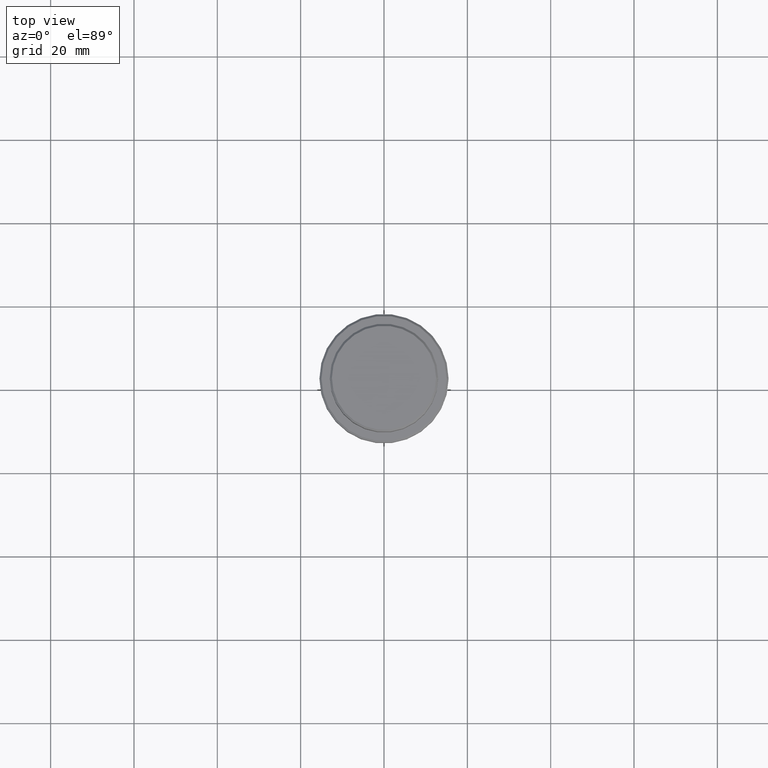
[diagram: clean part render]
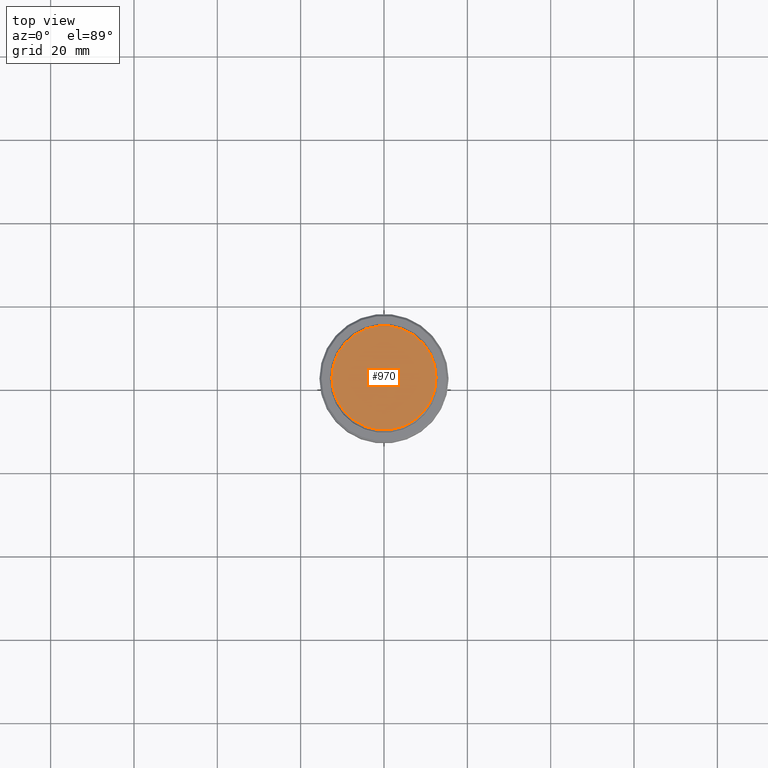
[diagram: same view with one face highlighted and labeled with its STEP entity id]
A machine part, top view. The second image highlights one B-rep face of the part: STEP entity #970.
In plain terms, the highlighted planar face has unit normal (0, -0, 1).
Its self-contained STEP definition (entity closure, byte-faithful):
#15 = EDGE_CURVE ( 'NONE', #179, #457, #1008, .T. ) ;
#179 = VERTEX_POINT ( 'NONE', #1085 ) ;
#231 = ORIENTED_EDGE ( 'NONE', *, *, #385, .T. ) ;
#272 = PLANE ( 'NONE',  #794 ) ;
#274 = AXIS2_PLACEMENT_3D ( 'NONE', #675, #460, #1343 ) ;
#285 = EDGE_LOOP ( 'NONE', ( #903, #231 ) ) ;
#344 = DIRECTION ( 'NONE',  ( 1.000000000000000000, 0.000000000000000000, 0.000000000000000000 ) ) ;
#385 = EDGE_CURVE ( 'NONE', #457, #179, #754, .T. ) ;
#457 = VERTEX_POINT ( 'NONE', #812 ) ;
#460 = DIRECTION ( 'NONE',  ( -0.000000000000000000, -0.000000000000000000, 1.000000000000000000 ) ) ;
#472 = DIRECTION ( 'NONE',  ( 0.000000000000000000, -0.000000000000000000, 1.000000000000000000 ) ) ;
#675 = CARTESIAN_POINT ( 'NONE',  ( 0.000000000000000000, 0.000000000000000000, 0.000000000000000000 ) ) ;
#708 = DIRECTION ( 'NONE',  ( 1.000000000000000000, 0.000000000000000000, 0.000000000000000000 ) ) ;
#754 = CIRCLE ( 'NONE', #274, 12.50000000000004086 ) ;
#794 = AXIS2_PLACEMENT_3D ( 'NONE', #1361, #472, #708 ) ;
#812 = CARTESIAN_POINT ( 'NONE',  ( 12.50000000000004086, 1.561424668912877675E-15, 0.000000000000000000 ) ) ;
#897 = CARTESIAN_POINT ( 'NONE',  ( 0.000000000000000000, 0.000000000000000000, 0.000000000000000000 ) ) ;
#903 = ORIENTED_EDGE ( 'NONE', *, *, #15, .T. ) ;
#919 = AXIS2_PLACEMENT_3D ( 'NONE', #897, #1334, #344 ) ;
#970 = ADVANCED_FACE ( 'NONE', ( #1346 ), #272, .T. ) ;
#1008 = CIRCLE ( 'NONE', #919, 12.50000000000004086 ) ;
#1085 = CARTESIAN_POINT ( 'NONE',  ( -12.50000000000004086, 0.000000000000000000, 0.000000000000000000 ) ) ;
#1334 = DIRECTION ( 'NONE',  ( -0.000000000000000000, -0.000000000000000000, 1.000000000000000000 ) ) ;
#1343 = DIRECTION ( 'NONE',  ( 1.000000000000000000, 0.000000000000000000, 0.000000000000000000 ) ) ;
#1346 = FACE_OUTER_BOUND ( 'NONE', #285, .T. ) ;
#1361 = CARTESIAN_POINT ( 'NONE',  ( 0.000000000000000000, 0.000000000000000000, 0.000000000000000000 ) ) ;